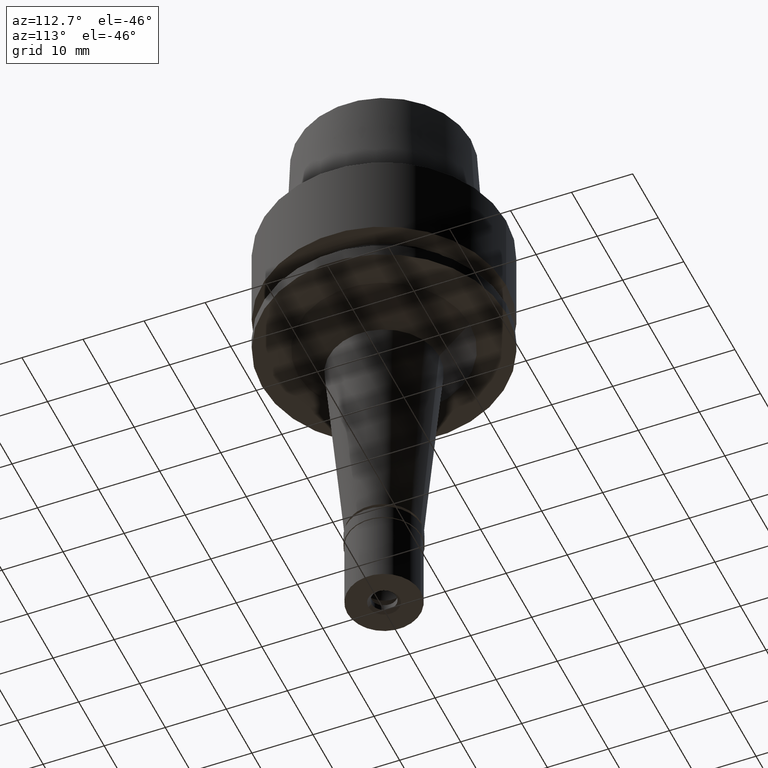
[diagram: clean part render]
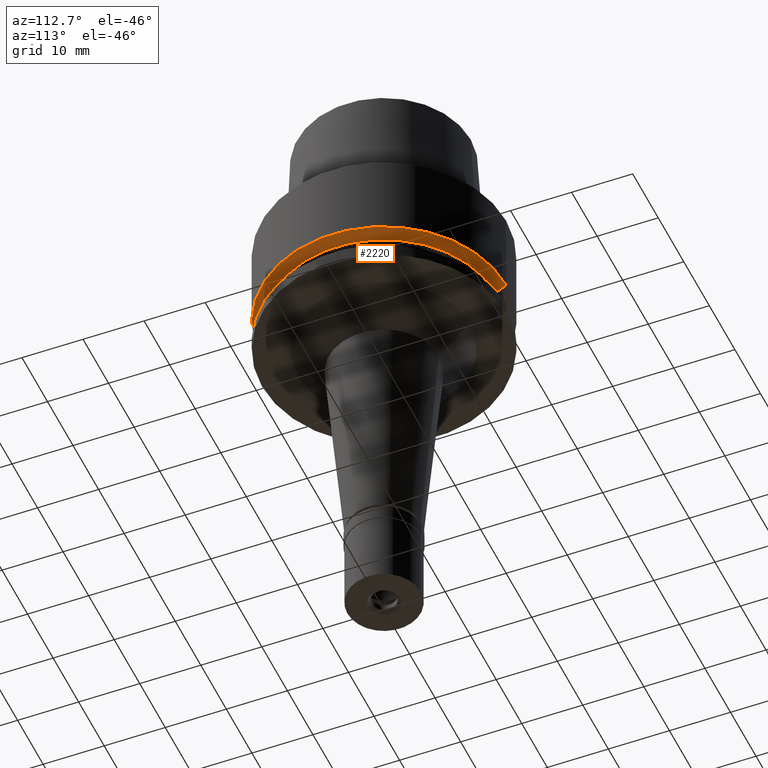
[diagram: same view with one face highlighted and labeled with its STEP entity id]
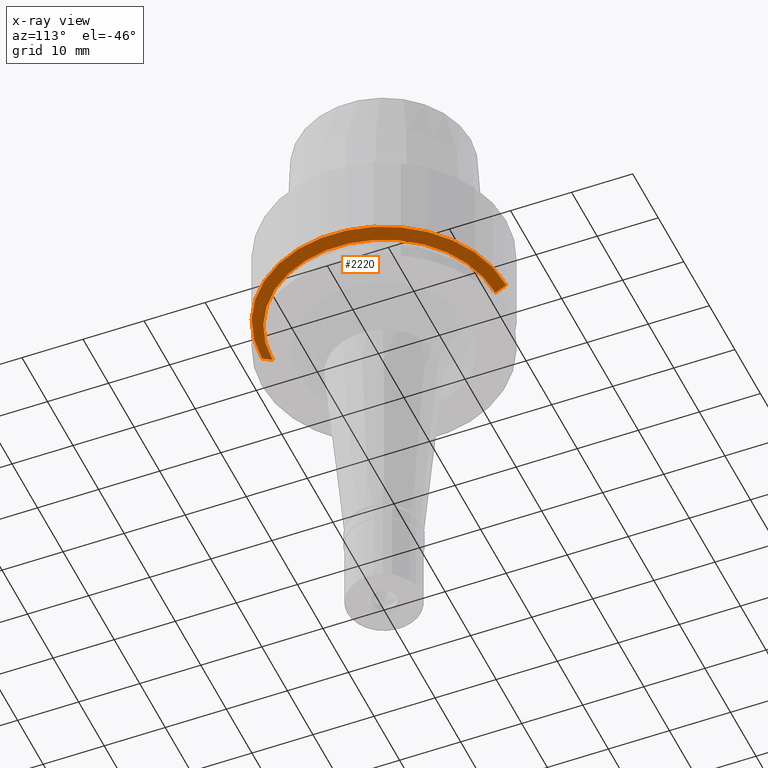
[diagram: x-ray of the same camera — body ghosted, the highlighted face saturated]
A machine part, auxiliary view. The second image highlights one B-rep face of the part: STEP entity #2220.
The next image is the same camera in x-ray: the body ghosted, the highlighted face saturated — about 0% of this face is hidden behind the body in this view.
In plain terms, the highlighted conical surface has half-angle 60 deg.
Its self-contained STEP definition (entity closure, byte-faithful):
#4 = EDGE_CURVE ( 'NONE', #1452, #2341, #1438, .T. ) ;
#44 = DIRECTION ( 'NONE',  ( 0.0000000000000000000, 0.8660254037841628172, -0.5000000000004778400 ) ) ;
#94 = DIRECTION ( 'NONE',  ( 0.0000000000000000000, -1.000000000000000000, 0.0000000000000000000 ) ) ;
#266 = CARTESIAN_POINT ( 'NONE',  ( 0.0000000000000000000, -20.00000000000000000, -13.97927405538000123 ) ) ;
#385 = DIRECTION ( 'NONE',  ( 0.0000000000000000000, 0.0000000000000000000, 1.000000000000000000 ) ) ;
#430 = CARTESIAN_POINT ( 'NONE',  ( 0.0000000000000000000, 20.00000000000000000, -13.97927405538000123 ) ) ;
#480 = LINE ( 'NONE', #2563, #1901 ) ;
#516 = EDGE_CURVE ( 'NONE', #2638, #958, #1049, .T. ) ;
#661 = DIRECTION ( 'NONE',  ( 0.0000000000000000000, -0.8660254037841628172, -0.5000000000004778400 ) ) ;
#958 = VERTEX_POINT ( 'NONE', #430 ) ;
#995 = FACE_OUTER_BOUND ( 'NONE', #2174, .T. ) ;
#1012 = CARTESIAN_POINT ( 'NONE',  ( 0.0000000000000000000, 0.0000000000000000000, -15.00000000000000000 ) ) ;
#1049 = CIRCLE ( 'NONE', #2172, 20.00000000000000000 ) ;
#1056 = CARTESIAN_POINT ( 'NONE',  ( 0.0000000000000000000, 18.23205080331999994, -15.00000000000000000 ) ) ;
#1128 = CARTESIAN_POINT ( 'NONE',  ( 0.0000000000000000000, -20.00000000000000000, -13.97927405538000123 ) ) ;
#1179 = EDGE_CURVE ( 'NONE', #958, #2341, #480, .T. ) ;
#1314 = ORIENTED_EDGE ( 'NONE', *, *, #516, .F. ) ;
#1326 = DIRECTION ( 'NONE',  ( 0.0000000000000000000, -1.000000000000000000, 0.0000000000000000000 ) ) ;
#1438 = CIRCLE ( 'NONE', #2298, 18.23205080331999994 ) ;
#1452 = VERTEX_POINT ( 'NONE', #2565 ) ;
#1558 = VECTOR ( 'NONE', #44, 999.9999999999998863 ) ;
#1640 = DIRECTION ( 'NONE',  ( 0.0000000000000000000, 1.000000000000000000, 0.0000000000000000000 ) ) ;
#1841 = CARTESIAN_POINT ( 'NONE',  ( 0.0000000000000000000, 0.0000000000000000000, -14.48963702768999973 ) ) ;
#1901 = VECTOR ( 'NONE', #661, 999.9999999999998863 ) ;
#1981 = EDGE_CURVE ( 'NONE', #2638, #1452, #2125, .T. ) ;
#2125 = LINE ( 'NONE', #1128, #1558 ) ;
#2160 = CARTESIAN_POINT ( 'NONE',  ( 0.0000000000000000000, 0.0000000000000000000, -13.97927405538000123 ) ) ;
#2172 = AXIS2_PLACEMENT_3D ( 'NONE', #2160, #2348, #94 ) ;
#2174 = EDGE_LOOP ( 'NONE', ( #1314, #2248, #2394, #2486 ) ) ;
#2220 = ADVANCED_FACE ( 'NONE', ( #995 ), #2629, .T. ) ;
#2248 = ORIENTED_EDGE ( 'NONE', *, *, #1981, .T. ) ;
#2298 = AXIS2_PLACEMENT_3D ( 'NONE', #1012, #385, #1326 ) ;
#2341 = VERTEX_POINT ( 'NONE', #1056 ) ;
#2348 = DIRECTION ( 'NONE',  ( 0.0000000000000000000, 0.0000000000000000000, 1.000000000000000000 ) ) ;
#2394 = ORIENTED_EDGE ( 'NONE', *, *, #4, .T. ) ;
#2486 = ORIENTED_EDGE ( 'NONE', *, *, #1179, .F. ) ;
#2539 = AXIS2_PLACEMENT_3D ( 'NONE', #1841, #2649, #1640 ) ;
#2563 = CARTESIAN_POINT ( 'NONE',  ( 0.0000000000000000000, 20.00000000000000000, -13.97927405538000123 ) ) ;
#2565 = CARTESIAN_POINT ( 'NONE',  ( 0.0000000000000000000, -18.23205080331999994, -15.00000000000000000 ) ) ;
#2629 = CONICAL_SURFACE ( 'NONE', #2539, 19.11602540165999997, 1.047197551196400456 ) ;
#2638 = VERTEX_POINT ( 'NONE', #266 ) ;
#2649 = DIRECTION ( 'NONE',  ( 0.0000000000000000000, 0.0000000000000000000, 1.000000000000000000 ) ) ;